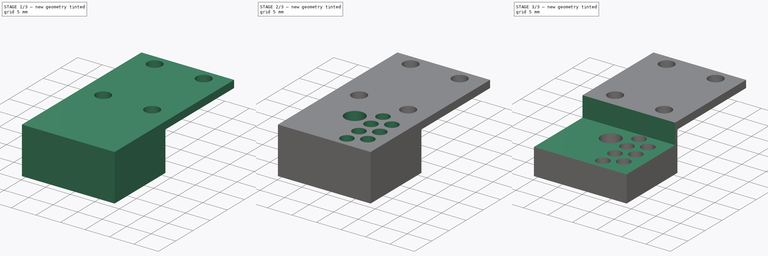
[diagram: build sequence overview — one tinted view per stage of 3, left to right]
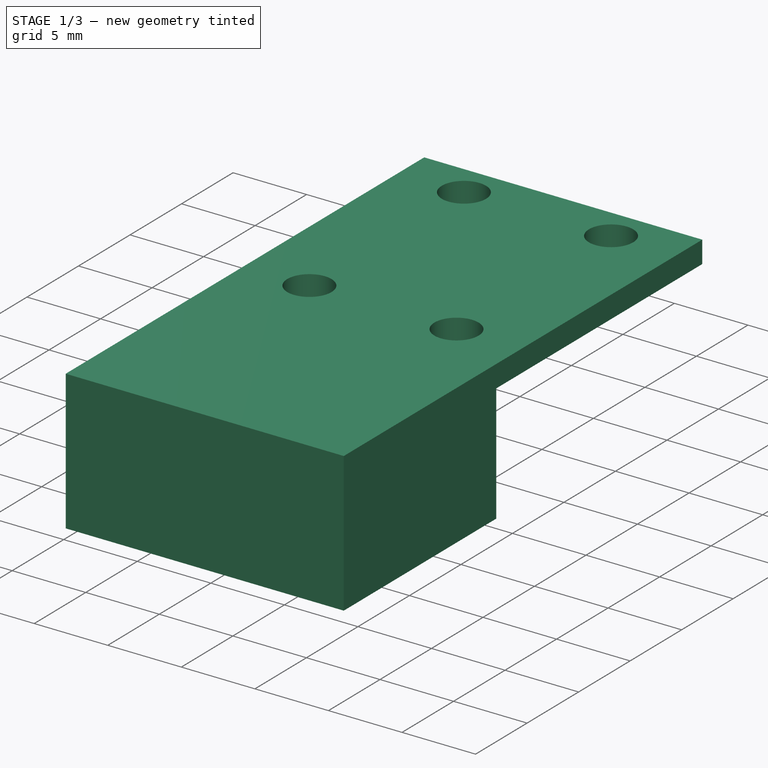
[diagram: stage 1 of 3 — iso view after this stage's code; geometry added in this stage tinted green]
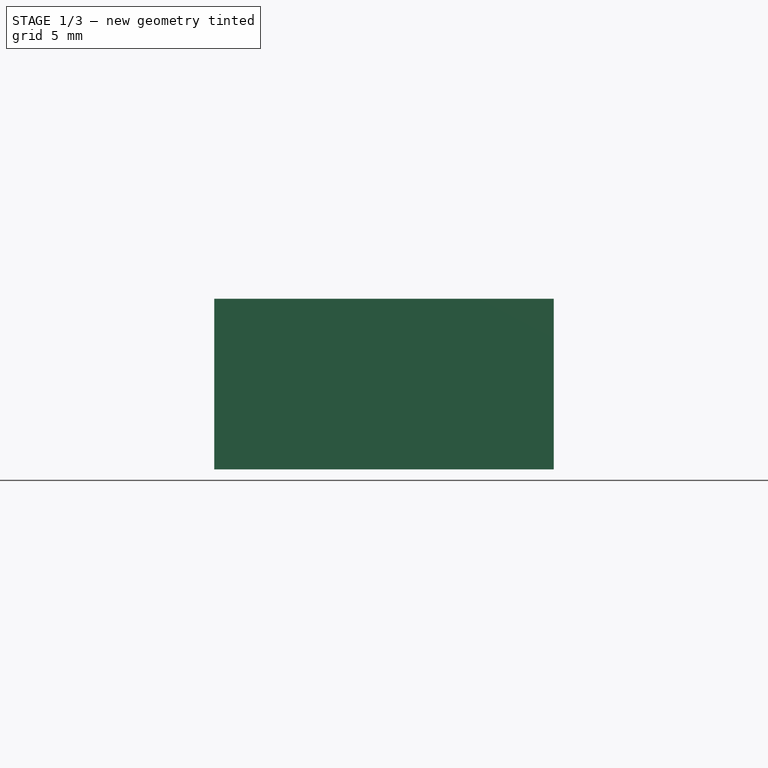
[diagram: stage 1 of 3 — front view after this stage's code; geometry added in this stage tinted green]
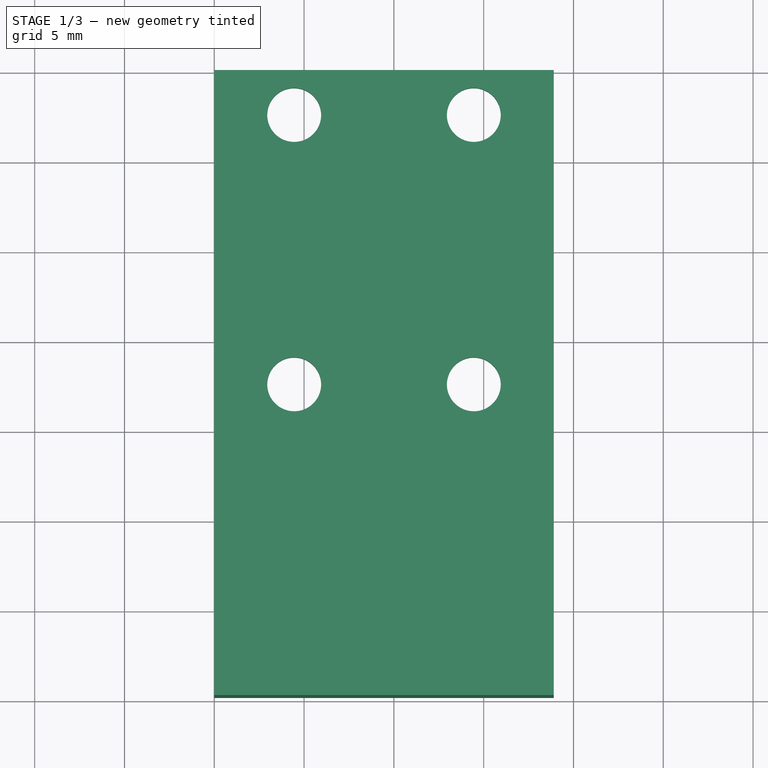
[diagram: stage 1 of 3 — top view after this stage's code; geometry added in this stage tinted green]
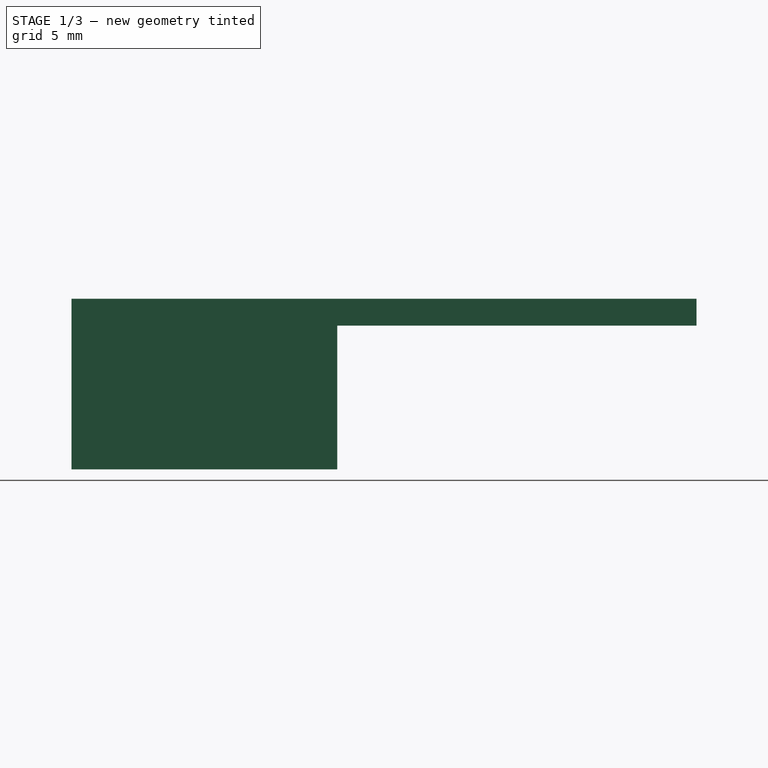
[diagram: stage 1 of 3 — right view after this stage's code; geometry added in this stage tinted green]
FCSTD DOCUMENT  (FreeCAD 0.21R33668 +26 (Git))
Label: NormalConnectorWithPin
License: All rights reserved
LicenseURL: http://en.wikipedia.org/wiki/All_rights_reserved
objects: Sketcher::SketchObject×6, PartDesign::SubShapeBinder×4, PartDesign::Pocket×4, PartDesign::Pad×2, PartDesign::Body×1
note: 23 computed .brp shape members not serialized (recipe doc carries the construction recipe); baked Part::Feature solids carry a one-line shape summary decoded from their .brp
EXTERNAL_REF file=MG/mgn9c_slide.FCStd obj=Body001
EXTERNAL_REF file=MG/mgn9c_13.FCStd obj=Body
EXTERNAL_REF file=MagnetoPot/MagnetoPot.FCStd obj=Sketch
EXTERNAL_REF file=OmniballConnector/OmniballConnector_7945.FCStd obj=Body
EXTERNAL_REF file=MagnetoPot/MagnetoPot.FCStd obj=Body
EXTERNAL_REF file=MG/Datasheet.FCStd obj=Spreadsheet
EXTERNAL_REF file=OmniballConnector/OmniballConnector_7945.FCStd obj=Sketch002
EXTERNAL_REF file=OmniballConnector/OmniballConnector_7945.FCStd obj=Sketch

FEATURE [PartDesign::SubShapeBinder] Binder  label="Slide"
  BindCopyOnChange = 0
  BindMode = 0
  ClaimChildren = false
  Context = -> Body [Binder.]
  Fuse = false
  MakeFace = true
  OffsetFill = false
  OffsetIntersection = false
  OffsetJoinType = 0
  OffsetOpenResult = false
  PartialLoad = false
  Relative = true
  Support = -> [<external MG/mgn9c_slide.FCStd>#Body001]
  _Version = 2
FEATURE [PartDesign::SubShapeBinder] Binder001  label="Rail"
  BindCopyOnChange = 0
  BindMode = 0
  ClaimChildren = false
  Context = -> Body [Binder001.]
  Fuse = false
  MakeFace = true
  OffsetFill = false
  OffsetIntersection = false
  OffsetJoinType = 0
  OffsetOpenResult = false
  PartialLoad = false
  Placement = pos=(0,5.5,-2) rot=(0,0,1;0rad)
  Relative = true
  Support = -> [<external MG/mgn9c_13.FCStd>#Body]
  _Version = 2
FEATURE [Sketcher::SketchObject] Sketch
  ExternalGeometry = -> [Binder]
  FullyConstrained = true
  MapMode = 5
  Placement = pos=(0,0,8) rot=(0,0,1;0rad)
  Support = -> [Binder]
  expr: Constraints[18] = <<MagnetoPot>>#<<Sketch>>.Constraints.PartWidth
  sketch-geometry (8):
    g0: LineSegment StartX=5 StartY=20 StartZ=0 EndX=23.9 EndY=20 EndZ=0
    g1: LineSegment StartX=23.9 StartY=20 StartZ=0 EndX=23.9 EndY=-14.8 EndZ=0
    g2: LineSegment StartX=23.9 StartY=-14.8 StartZ=0 EndX=5 EndY=-14.8 EndZ=0
    g3: LineSegment StartX=5 StartY=-14.8 StartZ=0 EndX=5 EndY=20 EndZ=0
    g4: Circle CenterX=9.45 CenterY=17.5 CenterZ=0 NormalX=0 NormalY=0 NormalZ=1 AngleXU=0 Radius=1.5
    g5: Circle CenterX=9.45 CenterY=2.5 CenterZ=0 NormalX=0 NormalY=0 NormalZ=1 AngleXU=0 Radius=1.5
    g6: Circle CenterX=19.45 CenterY=2.5 CenterZ=0 NormalX=0 NormalY=0 NormalZ=1 AngleXU=0 Radius=1.5
    g7: Circle CenterX=19.45 CenterY=17.5 CenterZ=0 NormalX=0 NormalY=0 NormalZ=1 AngleXU=0 Radius=1.5
  constraints (19):
    c: Coincident(g0,g1)
    c: Coincident(g1,g2)
    c: Coincident(g2,g3)
    c: Coincident(g3,g0)
    c: Horizontal(g0)
    c: Horizontal(g2)
    c: Vertical(g1)
    c: Vertical(g3)
    c: Coincident(g0,g-5)
    c: Coincident(g4,g-12)
    c: PointOnObject(g-11,g4)
    c: Coincident(g5,g-14)
    c: PointOnObject(g-13,g5)
    c: Coincident(g6,g-8)
    c: PointOnObject(g-7,g6)
    c: Coincident(g7,g-10)
    c: PointOnObject(g-9,g7)
    c: PointOnObject(g-6,g1)
    c: DistanceY(g1,g-15) = 20.3
FEATURE [PartDesign::Pad] Pad
  Direction = (0,0,1)
  Length = 1.5
  Length2 = 10
  Profile = -> Sketch
  ReferenceAxis = -> Sketch [N_Axis]
  Type = 0
  expr: Length = (6 - 3) / 2
FEATURE [PartDesign::SubShapeBinder] Binder002  label="Omniball"
  BindCopyOnChange = 0
  BindMode = 0
  ClaimChildren = false
  Context = -> Body [Binder002.]
  Fuse = false
  MakeFace = true
  OffsetFill = false
  OffsetIntersection = false
  OffsetJoinType = 0
  OffsetOpenResult = false
  PartialLoad = false
  Placement = pos=(11,-5,0) rot=(0,0,1;0rad)
  Relative = true
  Support = -> [<external OmniballConnector/OmniballConnector_7945.FCStd>#Body]
  _Version = 2
FEATURE [PartDesign::SubShapeBinder] Binder003  label="MagnetoPot"
  BindCopyOnChange = 0
  BindMode = 0
  ClaimChildren = false
  Context = -> Body [Binder003.]
  Fuse = false
  MakeFace = true
  OffsetFill = false
  OffsetIntersection = false
  OffsetJoinType = 0
  OffsetOpenResult = false
  PartialLoad = false
  Placement = pos=(0,-15,-4.5) rot=(0,0,1;0rad)
  Relative = true
  Support = -> [<external MagnetoPot/MagnetoPot.FCStd>#Body]
  _Version = 2
FEATURE [Sketcher::SketchObject] Sketch001
  ExternalGeometry = -> [Binder,Pad]
  FullyConstrained = true
  MapMode = 5
  Placement = pos=(0,0,8) rot=(1,0,0;3.14159rad)
  Support = -> [Pad]
  sketch-geometry (4):
    g0: LineSegment StartX=5 StartY=0 StartZ=0 EndX=23.9 EndY=0 EndZ=0
    g1: LineSegment StartX=23.9 StartY=0 StartZ=0 EndX=23.9 EndY=14.8 EndZ=0
    g2: LineSegment StartX=23.9 StartY=14.8 StartZ=0 EndX=5 EndY=14.8 EndZ=0
    g3: LineSegment StartX=5 StartY=14.8 StartZ=0 EndX=5 EndY=0 EndZ=0
  constraints (11):
    c: Coincident(g0,g1)
    c: Coincident(g1,g2)
    c: Coincident(g2,g3)
    c: Coincident(g3,g0)
    c: Horizontal(g0)
    c: Horizontal(g2)
    c: Vertical(g1)
    c: Vertical(g3)
    c: PointOnObject(g0,g-3)
    c: Coincident(g1,g-4)
    c: PointOnObject(g0,g-5)
FEATURE [PartDesign::Pad] Pad001
  BaseFeature = -> Pad
  Direction = (0,0,-1)
  Length = 8
  Length2 = 10
  Profile = -> Sketch001
  ReferenceAxis = -> Sketch001 [N_Axis]
  Type = 0
  expr: Length = <<Datasheet>>#<<mgn9c>>.Dim_H - <<Datasheet>>#<<mgn9c>>.Dim_H1
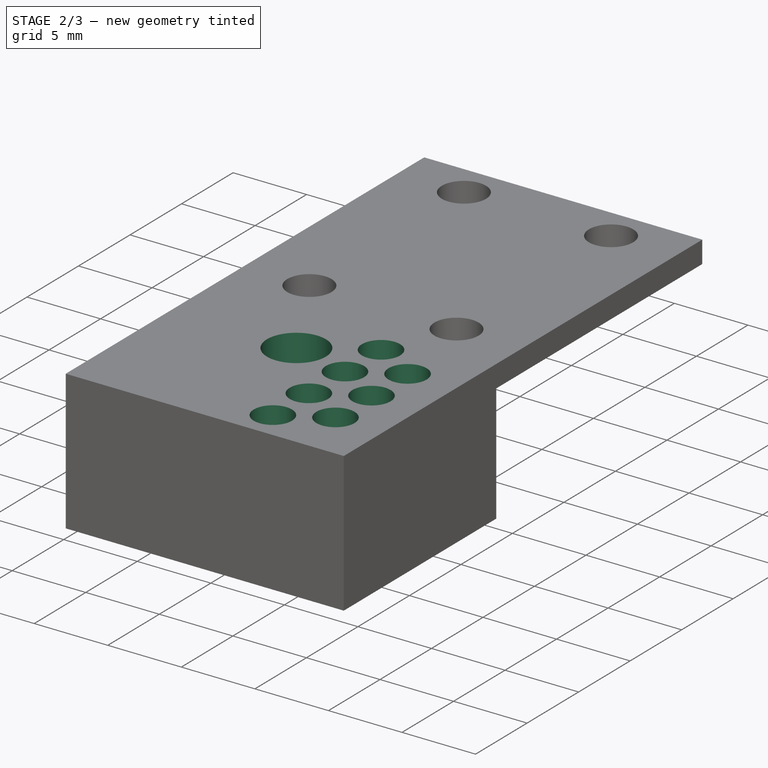
[diagram: stage 2 of 3 — iso view after this stage's code; geometry added in this stage tinted green]
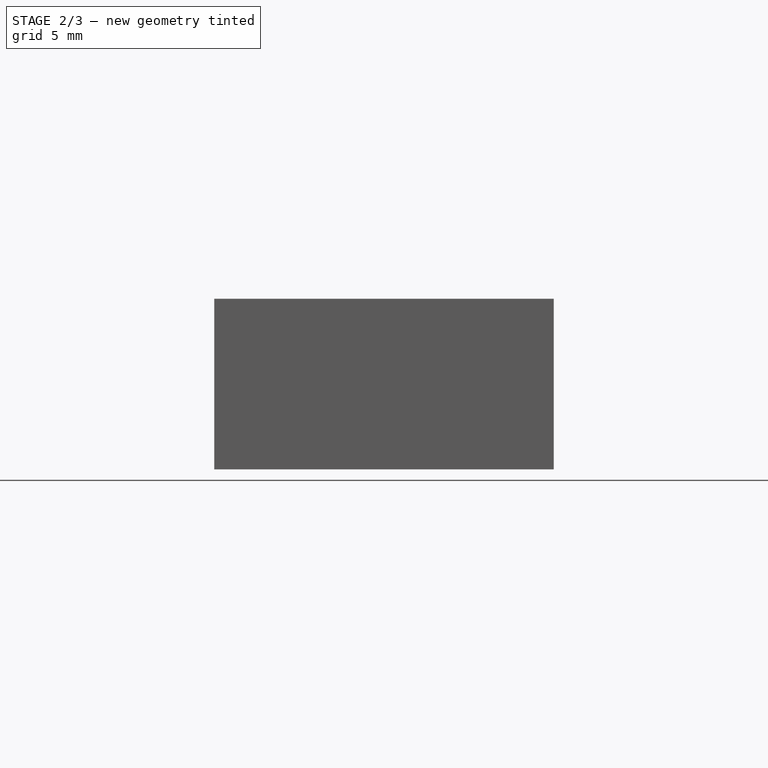
[diagram: stage 2 of 3 — front view after this stage's code; geometry added in this stage tinted green]
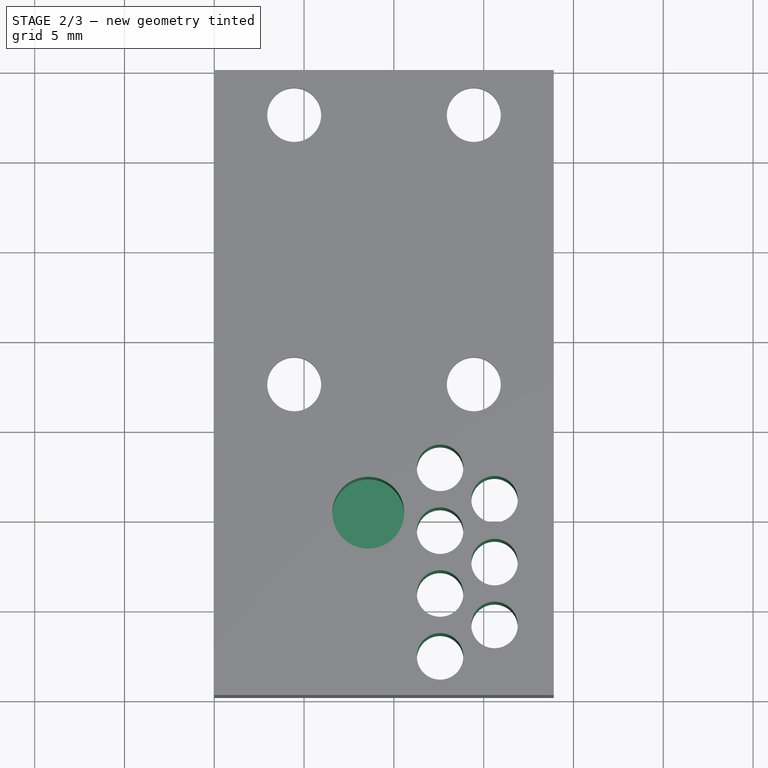
[diagram: stage 2 of 3 — top view after this stage's code; geometry added in this stage tinted green]
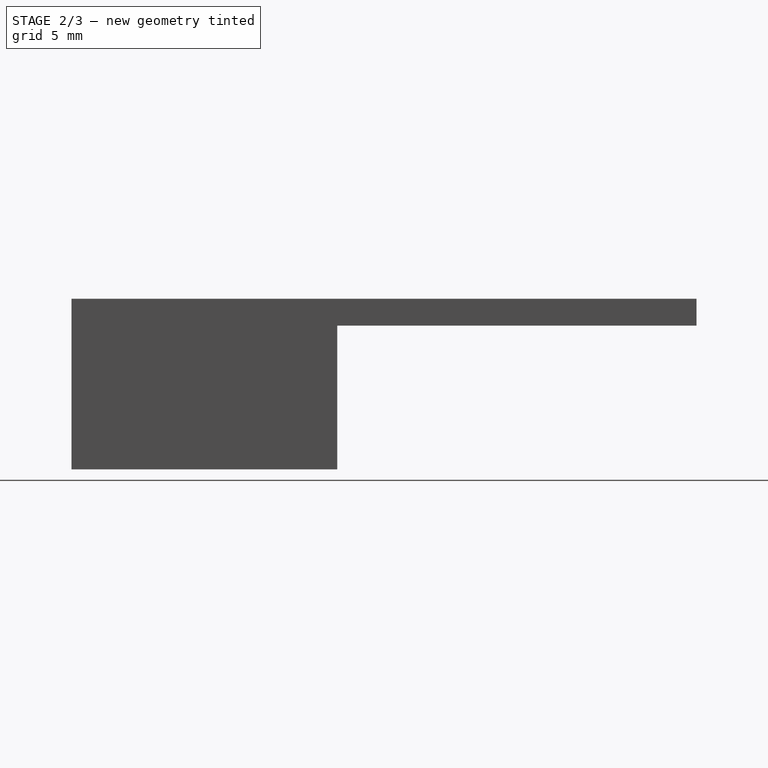
[diagram: stage 2 of 3 — right view after this stage's code; geometry added in this stage tinted green]
FEATURE [Sketcher::SketchObject] Sketch002  label="BusPins"
  ExternalGeometry = -> [Pad001]
  FullyConstrained = true
  MapMode = 5
  Placement = pos=(0,0,0) rot=(1,0,0;3.14159rad)
  Support = -> [Pad001]
  expr: .Constraints.Radius = <<OmniballConnector_7945>>#<<Sketch002>>.Constraints.Smallest_Radius
  expr: Constraints[1] = <<OmniballConnector_7945>>#<<Sketch002>>.Constraints.Smallest_Radius
  expr: Constraints[2] = <<OmniballConnector_7945>>#<<Sketch002>>.Constraints.Smallest_Radius
  expr: Constraints[3] = <<OmniballConnector_7945>>#<<Sketch002>>.Constraints.Smallest_Radius
  expr: Constraints[44] = .Constraints.Dist
  expr: Constraints[4] = <<OmniballConnector_7945>>#<<Sketch002>>.Constraints.Smallest_Radius
  expr: Constraints[5] = <<OmniballConnector_7945>>#<<Sketch002>>.Constraints.Smallest_Radius
  expr: Constraints[6] = <<OmniballConnector_7945>>#<<Sketch002>>.Constraints.Smallest_Radius
  sketch-geometry (22):
    g0: Circle CenterX=17.5735 CenterY=2.15 CenterZ=0 NormalX=0 NormalY=0 NormalZ=1 AngleXU=0 Radius=1.2954
    g1: Circle CenterX=20.6046 CenterY=3.9 CenterZ=0 NormalX=0 NormalY=0 NormalZ=1 AngleXU=0 Radius=1.2954
    g2: Circle CenterX=17.5735 CenterY=5.65 CenterZ=0 NormalX=0 NormalY=0 NormalZ=1 AngleXU=0 Radius=1.2954
    g3: Circle CenterX=17.5735 CenterY=9.15 CenterZ=0 NormalX=0 NormalY=0 NormalZ=1 AngleXU=0 Radius=1.2954
    g4: Circle CenterX=20.6046 CenterY=10.9 CenterZ=0 NormalX=0 NormalY=0 NormalZ=1 AngleXU=0 Radius=1.2954
    g5: Circle CenterX=20.6046 CenterY=7.4 CenterZ=0 NormalX=0 NormalY=0 NormalZ=1 AngleXU=0 Radius=1.2954
    g6: Circle CenterX=17.5735 CenterY=12.65 CenterZ=0 NormalX=0 NormalY=0 NormalZ=1 AngleXU=0 Radius=1.2954
    g7: LineSegment StartX=17.5735 StartY=12.65 StartZ=0 EndX=17.5735 EndY=2.15 EndZ=0
    g8: GeomPoint X=17.5735 Y=10.9 Z=0
    g9: GeomPoint X=17.5735 Y=7.4 Z=0
    g10: GeomPoint X=17.5735 Y=3.9 Z=0
    g11: LineSegment StartX=20.6046 StartY=10.9 StartZ=0 EndX=20.6046 EndY=3.9 EndZ=0
    g12: LineSegment StartX=17.5735 StartY=2.15 StartZ=0 EndX=20.6046 EndY=3.9 EndZ=0
    g13: LineSegment StartX=20.6046 StartY=3.9 StartZ=0 EndX=17.5735 EndY=5.65 EndZ=0
    g14: GeomPoint X=18.6954 Y=5.0023 Z=0
    g15: GeomPoint X=19.4828 Y=4.5477 Z=0
    g16: GeomPoint X=18.6954 Y=2.7977 Z=0
    g17: GeomPoint X=19.4828 Y=3.2523 Z=0
    g18: GeomPoint X=17.5735 Y=4.3546 Z=0
    g19: GeomPoint X=17.5735 Y=3.4454 Z=0
    g20: GeomPoint X=23.9 Y=7.4 Z=0
    g21: GeomPoint X=21.9 Y=7.4 Z=0
  constraints (46):
    c: Diameter(g0) = 2.5908  'Radius'
    c: Diameter(g1) = 2.5908
    c: Diameter(g2) = 2.5908
    c: Diameter(g5) = 2.5908
    c: Diameter(g4) = 2.5908
    c: Diameter(g3) = 2.5908
    c: Diameter(g6) = 2.5908
    c: Coincident(g7,g6)
    c: Coincident(g7,g0)
    c: Vertical(g7)
    c: Horizontal(g1,g10)
    c: Horizontal(g5,g9)
    c: Coincident(g11,g4)
    c: Coincident(g11,g1)
    c: Vertical(g11)
    c: Symmetric(g6,g3,g8)
    c: Symmetric(g3,g2,g9)
    c: Symmetric(g0,g2,g10)
    c: Symmetric(g4,g1,g5)
    c: Coincident(g12,g0)
    c: Coincident(g12,g1)
    c: Coincident(g13,g1)
    c: Coincident(g13,g2)
    c: PointOnObject(g14,g2)
    c: PointOnObject(g15,g1)
    c: PointOnObject(g16,g0)
    c: PointOnObject(g17,g1)
    c: PointOnObject(g17,g12)
    c: PointOnObject(g16,g12)
    c: PointOnObject(g14,g13)
    c: PointOnObject(g15,g13)
    c: PointOnObject(g18,g2)
    c: PointOnObject(g19,g0)
    c: PointOnObject(g19,g7)
    c: PointOnObject(g18,g7)
    c: Symmetric(g6,g0,g9)
    c: Symmetric(g3,g0,g2)
    c: Symmetric(g-4,g-4,g20)
    c: Horizontal(g5,g20)
    c: PointOnObject(g21,g5)
    c: Horizontal(g21,g5)
    c: DistanceY(g6,g-4) = 2.15  'BusOutsideDistance'
    c: DistanceX(g21,g20) = 2
    c: DistanceY(g0,g2) = 3.5  'Dist'
    c: Distance(g0,g1) = 3.5
    c: DistanceX(g6,g-4) = 6.32649  'ActiveStartToBusDistance'
FEATURE [PartDesign::Pocket] Pocket  label="Bus"
  BaseFeature = -> Pad001
  Direction = (0,0,1)
  Length = 5
  Length2 = 5
  Profile = -> Sketch002
  ReferenceAxis = -> Sketch002 [N_Axis]
  Type = 1
FEATURE [Sketcher::SketchObject] Sketch003
  ExternalGeometry = -> [Pocket,Binder]
  FullyConstrained = true
  MapMode = 5
  Placement = pos=(0,0,9.5) rot=(0,0,1;0rad)
  Support = -> [Pocket]
  sketch-geometry (2):
    g0: Circle CenterX=13.5735 CenterY=-4.65 CenterZ=0 NormalX=0 NormalY=0 NormalZ=1 AngleXU=0 Radius=2
    g1: LineSegment StartX=13.5735 StartY=5.5 StartZ=0 EndX=13.5735 EndY=-14.8 EndZ=0
  constraints (7):
    c: Diameter(g0) = 4
    c: PointOnObject(g1,g-4)
    c: PointOnObject(g1,g-3)
    c: Vertical(g1)
    c: Symmetric(g1,g1,g0)
    c: DistanceX(g1,g-3) = 10.3265  'MagnetCenterToEdge'
    c: DistanceX(g0,g-5) = 4  'ActiveStartToBusDistance'
FEATURE [PartDesign::Pocket] Pocket001
  BaseFeature = -> Pocket
  Direction = (0,0,-1)
  Length = 8.5
  Length2 = 5
  Profile = -> Sketch003
  ReferenceAxis = -> Sketch003 [N_Axis]
  Type = 0
  expr: Length = <<Pad>>.Length + Pad001.Length - 1 mm
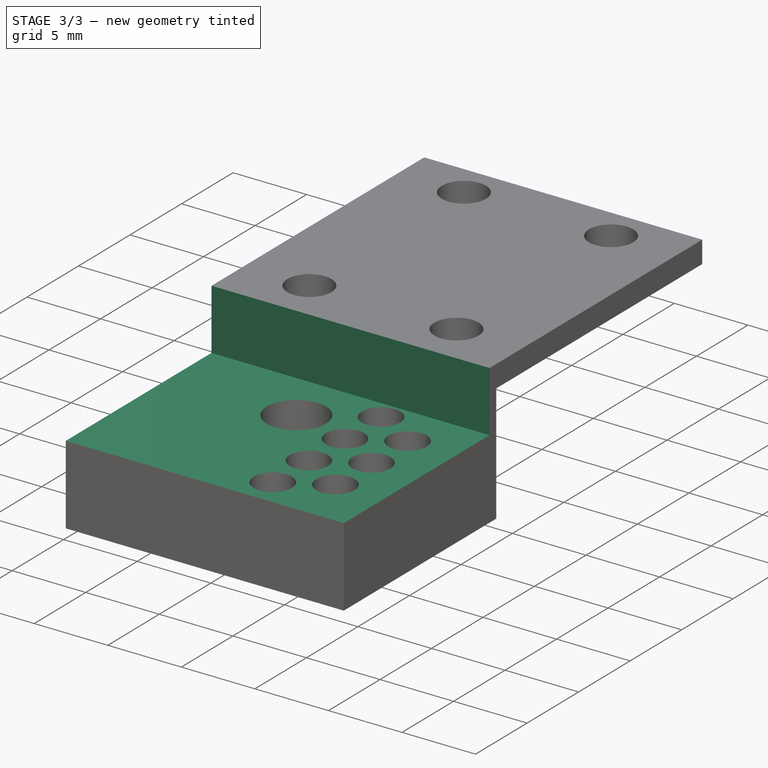
[diagram: stage 3 of 3 — iso view after this stage's code; geometry added in this stage tinted green]
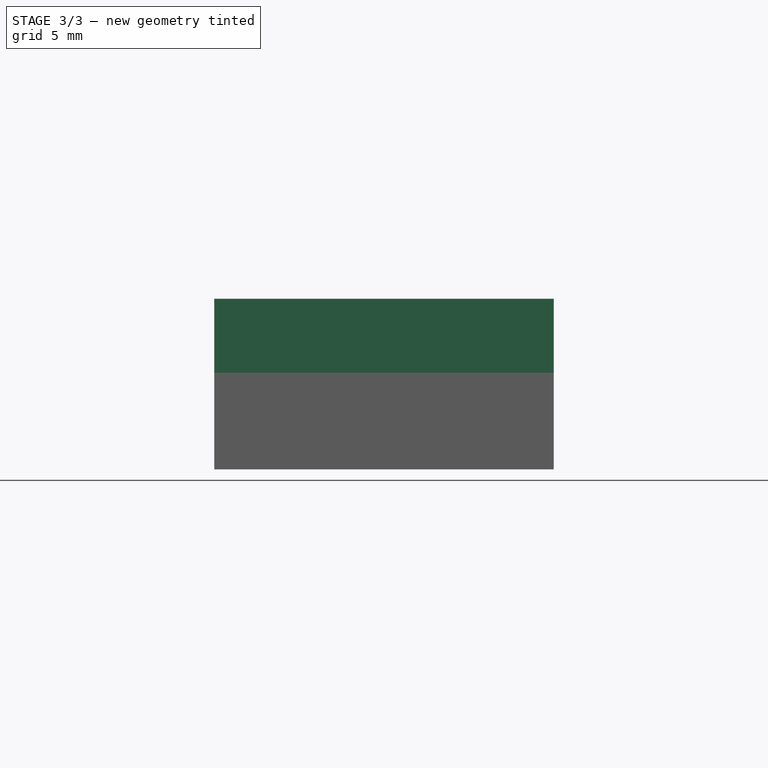
[diagram: stage 3 of 3 — front view after this stage's code; geometry added in this stage tinted green]
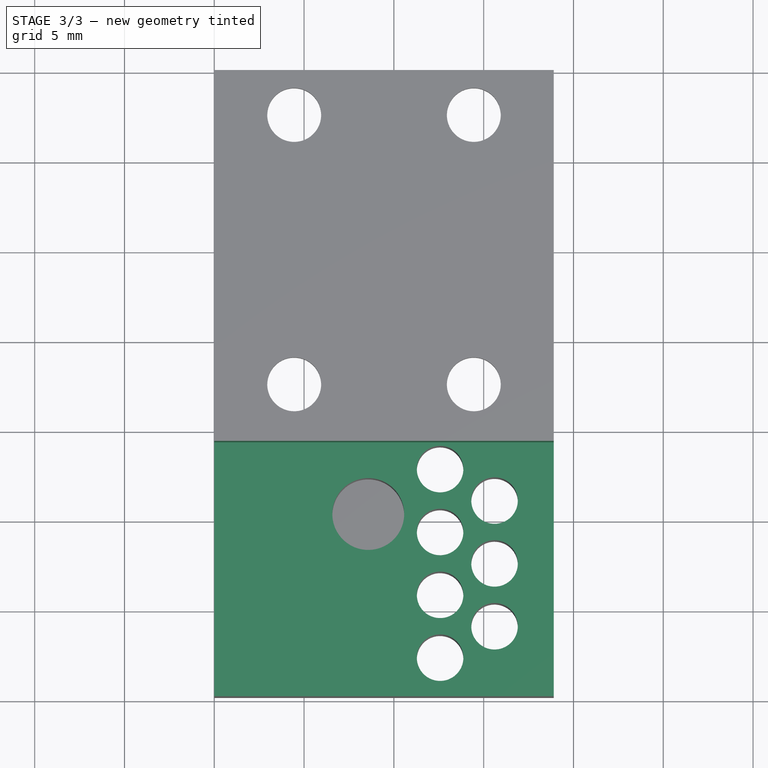
[diagram: stage 3 of 3 — top view after this stage's code; geometry added in this stage tinted green]
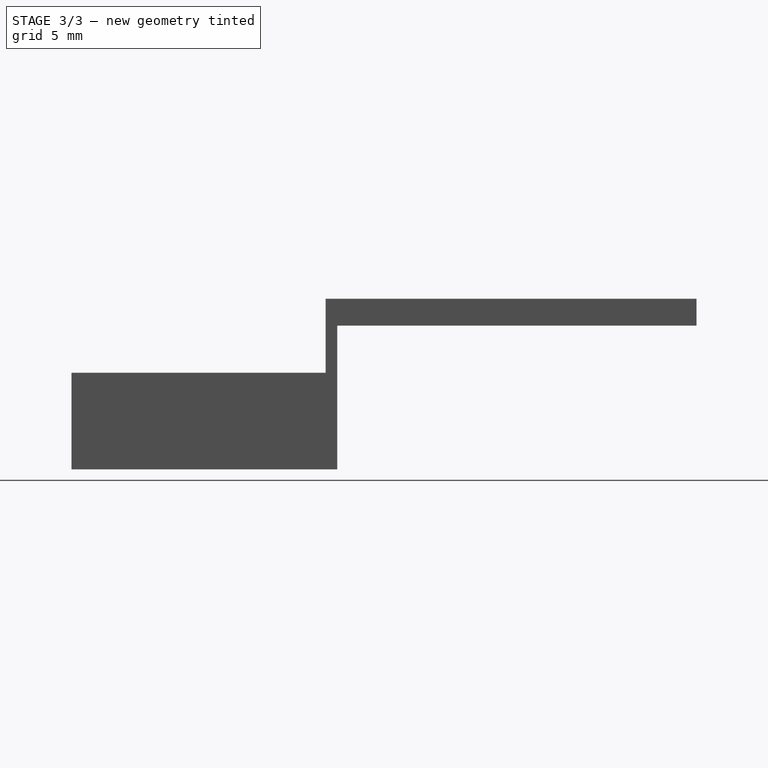
[diagram: stage 3 of 3 — right view after this stage's code; geometry added in this stage tinted green]
FEATURE [Sketcher::SketchObject] Sketch004
  ExternalGeometry = -> [Pocket001]
  FullyConstrained = true
  MapMode = 5
  Placement = pos=(0,0,1) rot=(0,0,1;0rad)
  Support = -> [Pocket001]
  sketch-geometry (1):
    g0: Circle CenterX=9.45 CenterY=2.5 CenterZ=0 NormalX=0 NormalY=0 NormalZ=1 AngleXU=0 Radius=1.5
  constraints (2):
    c: Coincident(g0,g-3)
    c: Diameter(g0) = 3
FEATURE [PartDesign::Pocket] Pocket002
  BaseFeature = -> Pocket001
  Direction = (0,0,-1)
  Length = 5
  Length2 = 5
  Profile = -> Sketch004
  ReferenceAxis = -> Sketch004 [N_Axis]
  Type = 1
FEATURE [Sketcher::SketchObject] Sketch005
  ExternalGeometry = -> [Pocket002]
  FullyConstrained = true
  MapMode = 5
  Placement = pos=(0,0,9.5) rot=(0,0,1;0rad)
  Support = -> [Pocket002]
  expr: .Constraints.Rad = <<OmniballConnector_7945>>#<<Sketch>>.Constraints.TopRad
  expr: Constraints[10] = .Constraints.Rad
  expr: Constraints[11] = .Constraints.Rad
  expr: Constraints[12] = .Constraints.Rad
  expr: Constraints[13] = .Constraints.Rad
  expr: Constraints[8] = .Constraints.Rad
  expr: Constraints[9] = .Constraints.Rad
  sketch-geometry (11):
    g0: Circle CenterX=17.5735 CenterY=-5.65 CenterZ=0 NormalX=0 NormalY=0 NormalZ=1 AngleXU=0 Radius=1.4986
    g1: Circle CenterX=17.5735 CenterY=-2.15 CenterZ=0 NormalX=0 NormalY=0 NormalZ=1 AngleXU=0 Radius=1.4986
    g2: Circle CenterX=20.6046 CenterY=-7.4 CenterZ=0 NormalX=0 NormalY=0 NormalZ=1 AngleXU=0 Radius=1.4986
    g3: Circle CenterX=17.5735 CenterY=-12.65 CenterZ=0 NormalX=0 NormalY=0 NormalZ=1 AngleXU=0 Radius=1.4986
    g4: Circle CenterX=20.6046 CenterY=-10.9 CenterZ=0 NormalX=0 NormalY=0 NormalZ=1 AngleXU=0 Radius=1.4986
    g5: Circle CenterX=17.5735 CenterY=-9.15 CenterZ=0 NormalX=0 NormalY=0 NormalZ=1 AngleXU=0 Radius=1.4986
    g6: Circle CenterX=13.5735 CenterY=-4.65 CenterZ=0 NormalX=0 NormalY=0 NormalZ=1 AngleXU=0 Radius=1.4986
    g7: LineSegment StartX=5 StartY=-0.6514 StartZ=0 EndX=23.9 EndY=-0.6514 EndZ=0
    g8: LineSegment StartX=23.9 StartY=-0.6514 StartZ=0 EndX=23.9 EndY=-14.8 EndZ=0
    g9: LineSegment StartX=23.9 StartY=-14.8 StartZ=0 EndX=5 EndY=-14.8 EndZ=0
    g10: LineSegment StartX=5 StartY=-14.8 StartZ=0 EndX=5 EndY=-0.6514 EndZ=0
  constraints (24):
    c: Coincident(g0,g-3)
    c: Coincident(g1,g-4)
    c: Coincident(g2,g-6)
    c: Coincident(g3,g-7)
    c: Coincident(g4,g-5)
    c: Coincident(g5,g-8)
    c: Coincident(g6,g-9)
    c: Diameter(g0) = 2.9972  'Rad'
    c: Diameter(g1) = 2.9972
    c: Diameter(g2) = 2.9972
    c: Diameter(g4) = 2.9972
    c: Diameter(g3) = 2.9972
    c: Diameter(g5) = 2.9972
    c: Diameter(g6) = 2.9972
    c: Coincident(g7,g8)
    c: Coincident(g8,g9)
    c: Coincident(g9,g10)
    c: Coincident(g10,g7)
    c: Horizontal(g7)
    c: Vertical(g8)
    c: Vertical(g10)
    c: Coincident(g9,g-11)
    c: Coincident(g8,g-10)
    c: Tangent(g7,g1)
FEATURE [PartDesign::Pocket] Pocket003
  BaseFeature = -> Pocket002
  Direction = (0,0,-1)
  Length = 4.1246
  Length2 = 5
  Profile = -> Sketch005
  ReferenceAxis = -> Sketch005 [N_Axis]
  Type = 0
  expr: Length = <<Pad>>.Length + <<Pad001>>.Length - (0.236 in + 0.015 in - <<Datasheet>>#<<mgn9c>>.Dim_H1 / 2)
FEATURE [PartDesign::Body] Body  label="SlideConnector"
  Group = -> [Binder,Binder001,Sketch,Pad,Binder002,Binder003,Sketch001,Pad001,Sketch002,Pocket,Sketch003,Pocket001,Sketch004,Pocket002,Sketch005,Pocket003]
  Origin = -> Origin
  Tip = -> Pocket003
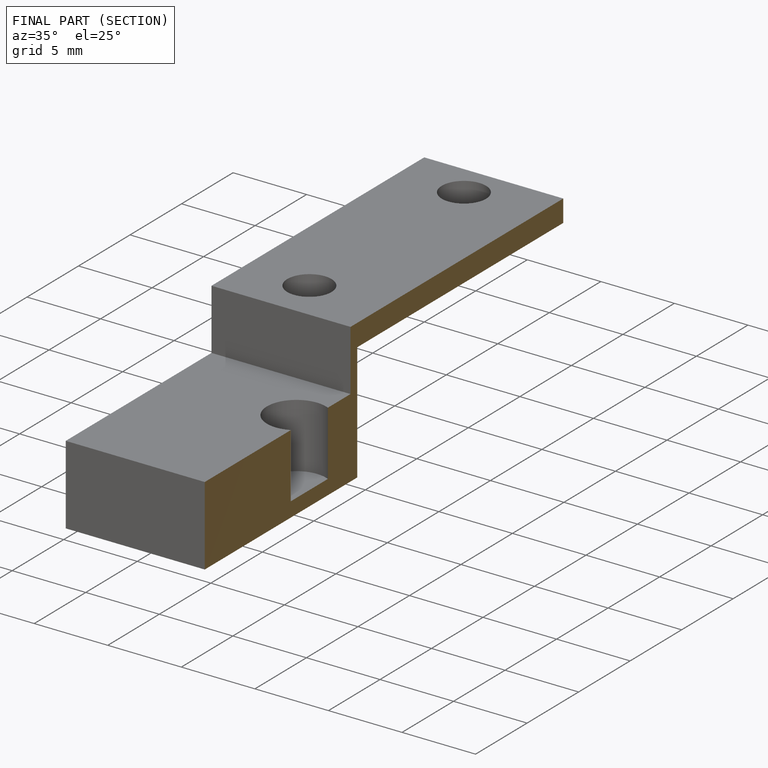
[diagram: finished part — half-section view (interior)]
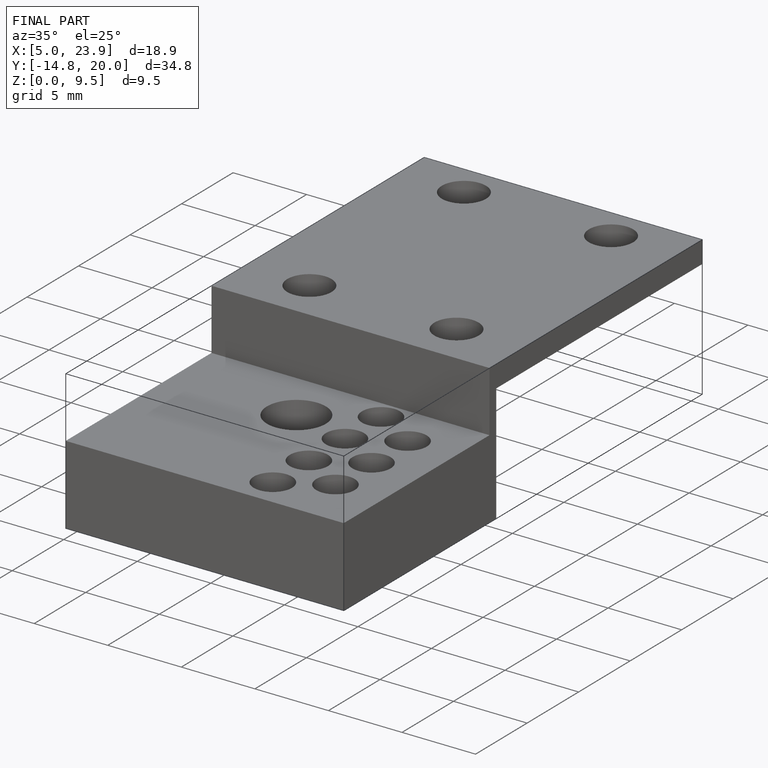
[diagram: finished part — iso view with bounding-box wireframe]
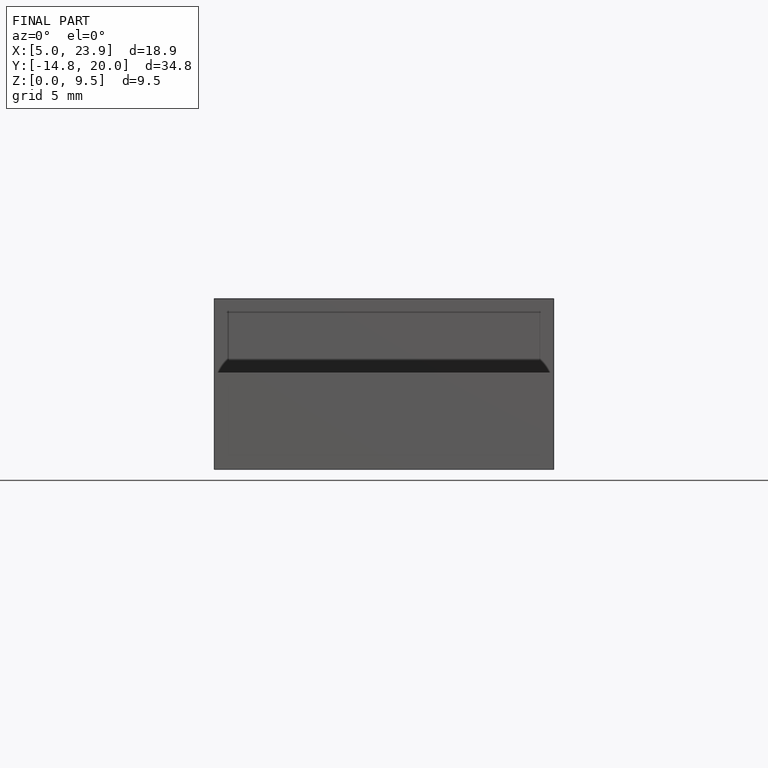
[diagram: finished part — front view with bounding-box wireframe]
